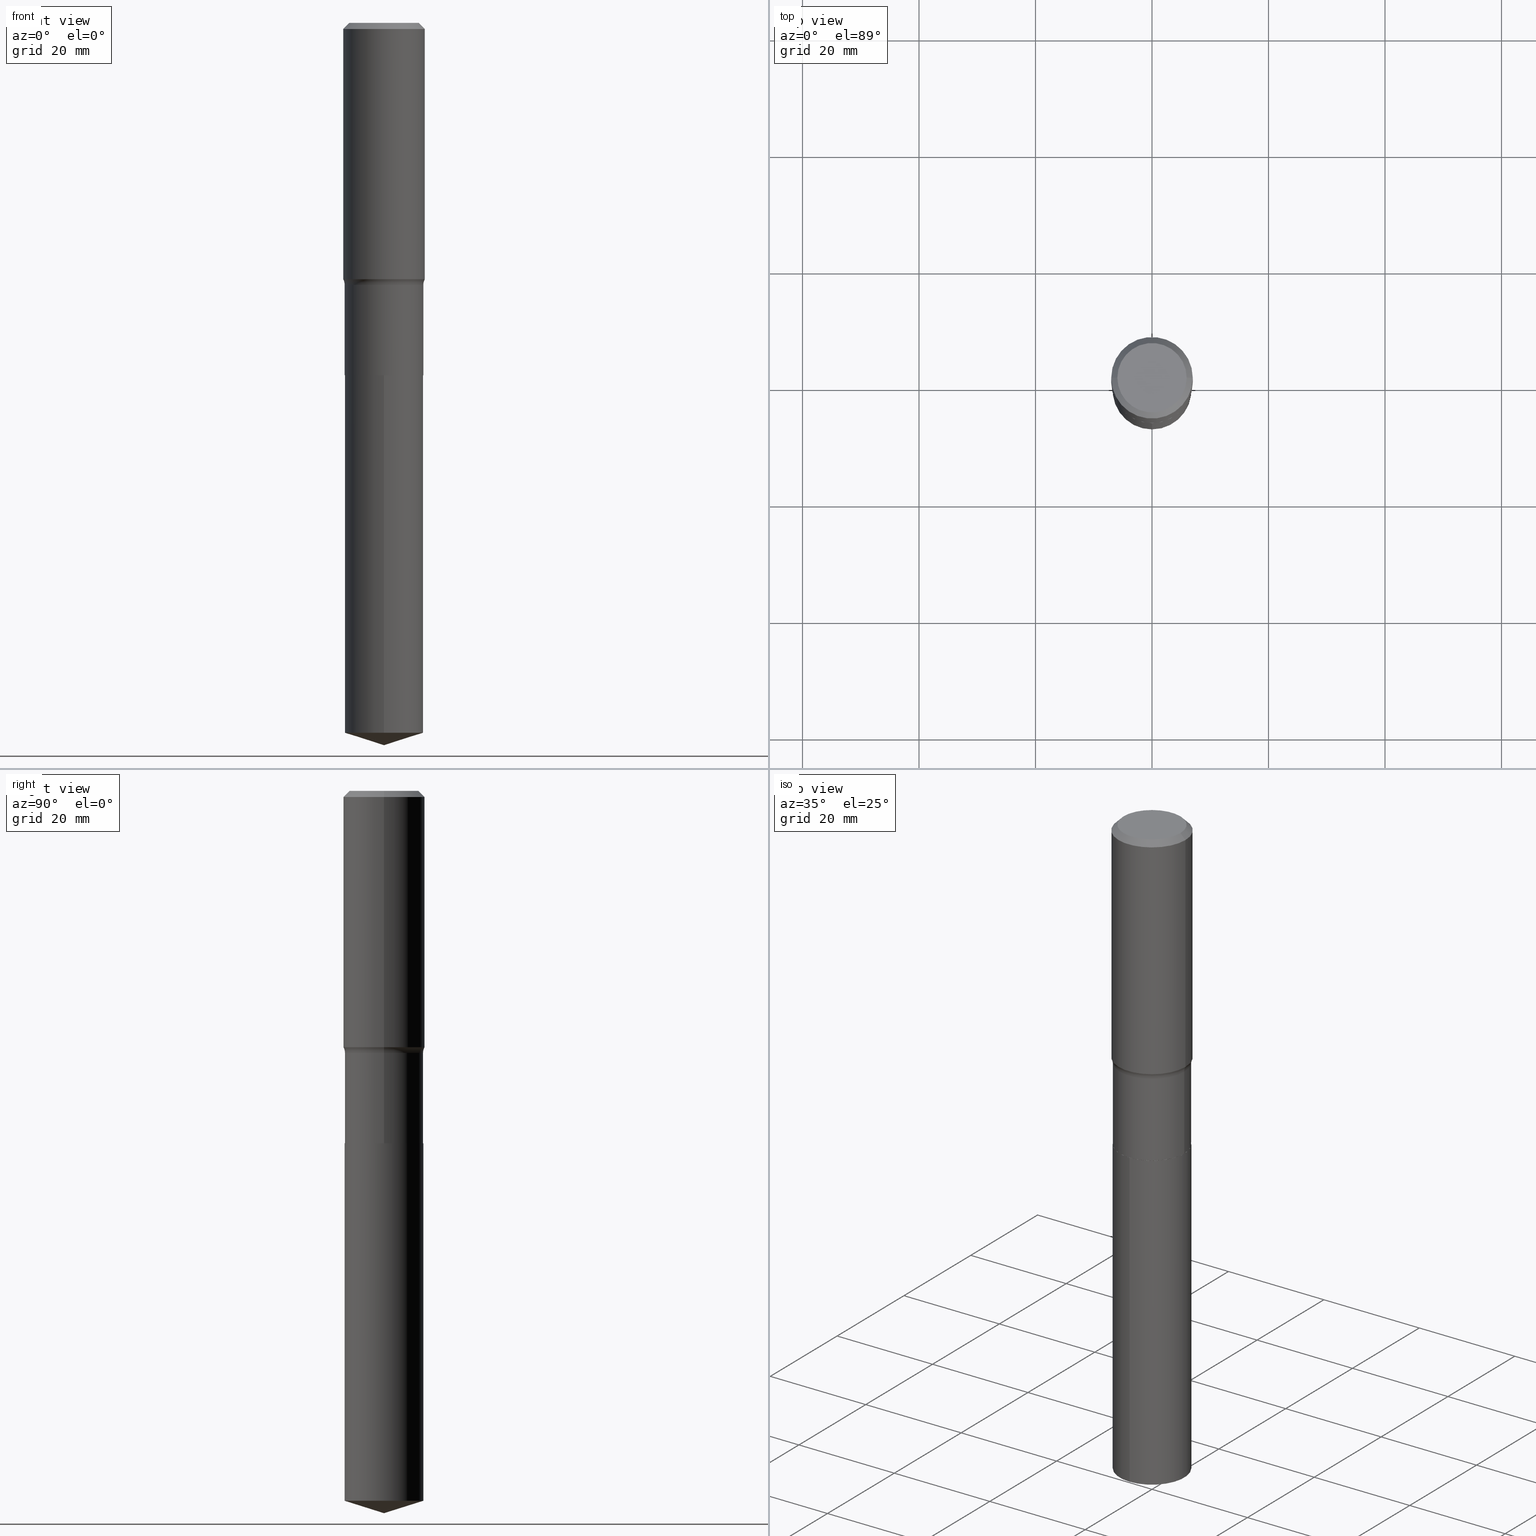
[diagram: canonical four-view strip — front | top / right | iso, engineering-drawing reading convention]
A machine part, canonical four-view strip (front | top / right | iso — engineering-drawing reading convention). The complete STEP part file that produces these views, byte-faithful:
ISO-10303-21;
HEADER;
FILE_DESCRIPTION (( 'STEP AP203' ),
    '1' );
FILE_NAME ('64199.STEP',
    '2024-04-19T15:35:16',
    ( '' ),
    ( '' ),
    'SwSTEP 2.0',
    'SolidWorks 2023',
    '' );
FILE_SCHEMA (( 'CONFIG_CONTROL_DESIGN' ));
ENDSEC;

DATA;
#1 = EDGE_CURVE ( 'NONE', #421, #33, #147, .T. ) ;
#2 = VECTOR ( 'NONE', #347, 39.37007874015748143 ) ;
#3 = CARTESIAN_POINT ( 'NONE',  ( 5.824862149452375369E-29, -8.316359400990487656E-15, -2.381899999999999462 ) ) ;
#4 = AXIS2_PLACEMENT_3D ( 'NONE', #100, #214, #254 ) ;
#5 = CARTESIAN_POINT ( 'NONE',  ( 1.173308198626494863E-28, -1.675328935947353853E-14, -4.798109346855410351 ) ) ;
#6 = ADVANCED_FACE ( 'NONE', ( #120 ), #345, .T. ) ;
#7 = CYLINDRICAL_SURFACE ( 'NONE', #30, 0.2657499999999999862 ) ;
#8 = VERTEX_POINT ( 'NONE', #153 ) ;
#9 = AXIS2_PLACEMENT_3D ( 'NONE', #249, #128, #173 ) ;
#10 = DIRECTION ( 'NONE',  ( -2.445468806185136597E-29, 3.491481338843145583E-15, 1.000000000000000000 ) ) ;
#11 = LINE ( 'NONE', #321, #445 ) ;
#12 = CARTESIAN_POINT ( 'NONE',  ( -1.002970424325033577E-46, 1.431975951230896486E-32, 4.101342130344485961E-18 ) ) ;
#13 = CYLINDRICAL_SURFACE ( 'NONE', #39, 0.2756000000000001227 ) ;
#14 = PERSON_AND_ORGANIZATION ( #466, #439 ) ;
#15 = AXIS2_PLACEMENT_3D ( 'NONE', #176, #10, #438 ) ;
#16 = CARTESIAN_POINT ( 'NONE',  ( 1.010956804476942048E-30, -1.443378385477765563E-16, -0.04134000000000026542 ) ) ;
#17 = APPROVAL ( #136, 'UNSPECIFIED' ) ;
#18 = DIRECTION ( 'NONE',  ( 1.000000000000000000, -6.982962677686265922E-15, 0.000000000000000000 ) ) ;
#19 = CALENDAR_DATE ( 2024, 19, 4 ) ;
#20 = DIRECTION ( 'NONE',  ( -2.445468806185136597E-29, 3.491481338843145583E-15, 1.000000000000000000 ) ) ;
#21 = EDGE_LOOP ( 'NONE', ( #118, #263, #146, #419 ) ) ;
#22 = AXIS2_PLACEMENT_3D ( 'NONE', #453, #156, #427 ) ;
#23 = VECTOR ( 'NONE', #96, 39.37007874015748143 ) ;
#24 = DIRECTION ( 'NONE',  ( 6.982962677686265922E-15, 1.000000000000000000, -3.491804205402707273E-15 ) ) ;
#25 = ORIENTED_EDGE ( 'NONE', *, *, #490, .F. ) ;
#26 = DIRECTION ( 'NONE',  ( -6.982962677686266711E-15, -1.000000000000000000, 3.491481338843145583E-15 ) ) ;
#27 = EDGE_LOOP ( 'NONE', ( #183, #260 ) ) ;
#28 = PLANE ( 'NONE',  #148 ) ;
#29 = ORIENTED_EDGE ( 'NONE', *, *, #58, .F. ) ;
#30 = AXIS2_PLACEMENT_3D ( 'NONE', #3, #303, #158 ) ;
#31 = FACE_OUTER_BOUND ( 'NONE', #218, .T. ) ;
#32 = CIRCLE ( 'NONE', #194, 0.2657499999999999862 ) ;
#33 = VERTEX_POINT ( 'NONE', #41 ) ;
#34 =( GEOMETRIC_REPRESENTATION_CONTEXT ( 3 ) GLOBAL_UNCERTAINTY_ASSIGNED_CONTEXT ( ( #172 ) ) GLOBAL_UNIT_ASSIGNED_CONTEXT ( ( #244, #134, #129 ) ) REPRESENTATION_CONTEXT ( 'NONE', 'WORKASPACE' ) );
#35 = DIRECTION ( 'NONE',  ( -2.445243349671607734E-29, 3.491804205402706878E-15, 1.000000000000000000 ) ) ;
#36 = EDGE_LOOP ( 'NONE', ( #455, #177, #144, #456 ) ) ;
#37 = DIRECTION ( 'NONE',  ( -6.982962677686266711E-15, -1.000000000000000000, 3.083930002255048040E-15 ) ) ;
#38 = ORIENTED_EDGE ( 'NONE', *, *, #135, .F. ) ;
#39 = AXIS2_PLACEMENT_3D ( 'NONE', #282, #200, #433 ) ;
#40 = EDGE_CURVE ( 'NONE', #299, #363, #304, .T. ) ;
#41 = CARTESIAN_POINT ( 'NONE',  ( -1.855722331595008201E-15, -0.2657500000000168061, -4.798109346855409463 ) ) ;
#42 = DATE_AND_TIME ( #278, #88 ) ;
#43 = EDGE_LOOP ( 'NONE', ( #442, #373 ) ) ;
#44 = ADVANCED_FACE ( 'NONE', ( #84 ), #7, .T. ) ;
#45 = APPROVAL_ROLE ( '' ) ;
#46 = CC_DESIGN_PERSON_AND_ORGANIZATION_ASSIGNMENT ( #55, #206, ( #317 ) ) ;
#47 = DIRECTION ( 'NONE',  ( -2.445243349671607734E-29, 3.491804205402707273E-15, 1.000000000000000000 ) ) ;
#48 = CARTESIAN_POINT ( 'NONE',  ( 1.193743350876182104E-28, -1.704663895035547476E-14, -4.881899999999999906 ) ) ;
#49 = VECTOR ( 'NONE', #236, 39.37007874015748143 ) ;
#50 = AXIS2_PLACEMENT_3D ( 'NONE', #386, #325, #247 ) ;
#51 = DIRECTION ( 'NONE',  ( -2.445468806185136597E-29, 3.491481338843145583E-15, 1.000000000000000000 ) ) ;
#52 =( LENGTH_UNIT ( ) NAMED_UNIT ( * ) SI_UNIT ( $, .METRE. ) );
#53 = APPROVAL_DATE_TIME ( #431, #17 ) ;
#54 = CARTESIAN_POINT ( 'NONE',  ( 5.823639415049283689E-29, -8.314613660321065363E-15, -2.381399999999999739 ) ) ;
#55 = PERSON_AND_ORGANIZATION ( #466, #439 ) ;
#56 = DIRECTION ( 'NONE',  ( -2.445468806185136597E-29, 3.491481338843145583E-15, 1.000000000000000000 ) ) ;
#57 = AXIS2_PLACEMENT_3D ( 'NONE', #392, #463, #389 ) ;
#58 = EDGE_CURVE ( 'NONE', #180, #459, #484, .T. ) ;
#59 = AXIS2_PLACEMENT_3D ( 'NONE', #16, #205, #122 ) ;
#60 = LINE ( 'NONE', #318, #193 ) ;
#61 = DIRECTION ( 'NONE',  ( 1.000000000000000000, -6.982962677686267499E-15, 4.876157962347795834E-29 ) ) ;
#62 = CARTESIAN_POINT ( 'NONE',  ( 0.2657499999999999862, -1.855722331595125347E-15, 1.295843978167769732E-29 ) ) ;
#63 = LOCAL_TIME ( 11, 35, 16.00000000000000000, #357 ) ;
#64 = ORIENTED_EDGE ( 'NONE', *, *, #91, .T. ) ;
#65 = ADVANCED_FACE ( 'NONE', ( #382 ), #454, .T. ) ;
#66 = DIRECTION ( 'NONE',  ( 1.000000000000000000, -6.982962677686266711E-15, 4.876176775795935232E-29 ) ) ;
#67 = ORIENTED_EDGE ( 'NONE', *, *, #1, .F. ) ;
#68 = CIRCLE ( 'NONE', #405, 0.2657500000000000417 ) ;
#69 = CIRCLE ( 'NONE', #83, 0.07800000000000002764 ) ;
#70 = EDGE_LOOP ( 'NONE', ( #301, #196, #230, #229 ) ) ;
#71 = CARTESIAN_POINT ( 'NONE',  ( -8.433145269178622269E-28, 1.204267365974203475E-13, 34.48817874015747975 ) ) ;
#72 = EDGE_LOOP ( 'NONE', ( #370, #110, #413, #112 ) ) ;
#73 = CARTESIAN_POINT ( 'NONE',  ( 0.2657500000000000417, -1.017033599191619229E-14, -2.381399999999999739 ) ) ;
#74 = VERTEX_POINT ( 'NONE', #163 ) ;
#75 = CARTESIAN_POINT ( 'NONE',  ( 5.824862149452375369E-29, -8.316359400990487656E-15, -2.381899999999999462 ) ) ;
#76 = EDGE_LOOP ( 'NONE', ( #161, #64, #375, #38 ) ) ;
#77 = ORIENTED_EDGE ( 'NONE', *, *, #124, .F. ) ;
#78 = ADVANCED_FACE ( 'NONE', ( #208 ), #315, .T. ) ;
#79 = VERTEX_POINT ( 'NONE', #430 ) ;
#80 = APPROVAL_DATE_TIME ( #42, #359 ) ;
#81 = LOCAL_TIME ( 11, 35, 16.00000000000000000, #166 ) ;
#82 = ORIENTED_EDGE ( 'NONE', *, *, #226, .T. ) ;
#83 = AXIS2_PLACEMENT_3D ( 'NONE', #329, #26, #295 ) ;
#84 = FACE_OUTER_BOUND ( 'NONE', #407, .T. ) ;
#85 = EDGE_CURVE ( 'NONE', #115, #299, #11, .T. ) ;
#86 = DIRECTION ( 'NONE',  ( 0.7071067811865452413, -7.319954787623248157E-15, -0.7071067811865497932 ) ) ;
#87 = LINE ( 'NONE', #428, #364 ) ;
#88 = LOCAL_TIME ( 11, 35, 16.00000000000000000, #127 ) ;
#89 = CARTESIAN_POINT ( 'NONE',  ( 0.2652499999999999858, -1.016859025124677000E-14, -2.381899999999999462 ) ) ;
#90 = CARTESIAN_POINT ( 'NONE',  ( -0.2657499999999999862, 1.888267320282466146E-15, -1.307207000235241229E-29 ) ) ;
#91 = EDGE_CURVE ( 'NONE', #189, #192, #327, .T. ) ;
#92 = CARTESIAN_POINT ( 'NONE',  ( -5.014852121625167883E-47, 7.159879756154482429E-33, 2.050671065172242981E-18 ) ) ;
#93 = LINE ( 'NONE', #90, #23 ) ;
#94 = CYLINDRICAL_SURFACE ( 'NONE', #57, 0.2756000000000001227 ) ;
#95 = APPROVAL ( #284, 'UNSPECIFIED' ) ;
#96 = DIRECTION ( 'NONE',  ( -2.445468806185136877E-29, 3.491481338843145188E-15, 1.000000000000000000 ) ) ;
#97 = CARTESIAN_POINT ( 'NONE',  ( 5.824862149452375369E-29, -8.316359400990487656E-15, -2.381899999999999462 ) ) ;
#98 = CIRCLE ( 'NONE', #250, 0.2657499999999999862 ) ;
#99 = CIRCLE ( 'NONE', #114, 0.2342600000000000238 ) ;
#100 = CARTESIAN_POINT ( 'NONE',  ( 5.824862149452375369E-29, -8.316359400990487656E-15, -2.381899999999999462 ) ) ;
#101 = ADVANCED_FACE ( 'NONE', ( #285 ), #94, .T. ) ;
#102 = MANIFOLD_SOLID_BREP ( 'Body-Move/Copy2[1]', #351 ) ;
#103 = CARTESIAN_POINT ( 'NONE',  ( 5.824862149452375369E-29, -8.316359400990487656E-15, -2.381899999999999462 ) ) ;
#104 = EDGE_LOOP ( 'NONE', ( #232, #258, #307, #343 ) ) ;
#105 = DIRECTION ( 'NONE',  ( 7.105427357601001859E-15, 1.000000000000000000, -3.491481338843145583E-15 ) ) ;
#106 = ORIENTED_EDGE ( 'NONE', *, *, #160, .F. ) ;
#107 = AXIS2_PLACEMENT_3D ( 'NONE', #5, #340, #492 ) ;
#108 = CONICAL_SURFACE ( 'NONE', #371, 124.8659371009150760, 1.265363707695891682 ) ;
#109 = CYLINDRICAL_SURFACE ( 'NONE', #460, 0.2657499999999999862 ) ;
#110 = ORIENTED_EDGE ( 'NONE', *, *, #379, .T. ) ;
#111 = FACE_OUTER_BOUND ( 'NONE', #21, .T. ) ;
#112 = ORIENTED_EDGE ( 'NONE', *, *, #302, .F. ) ;
#113 = DIRECTION ( 'NONE',  ( -2.445468806185136597E-29, 3.491481338843145583E-15, 1.000000000000000000 ) ) ;
#114 = AXIS2_PLACEMENT_3D ( 'NONE', #12, #434, #61 ) ;
#115 = VERTEX_POINT ( 'NONE', #203 ) ;
#116 = MANIFOLD_SOLID_BREP ( 'Body-Move/Copy2[2]', #319 ) ;
#117 = PRODUCT_DEFINITION ( 'UNKNOWN', '', #235, #472 ) ;
#118 = ORIENTED_EDGE ( 'NONE', *, *, #91, .F. ) ;
#119 = ORIENTED_EDGE ( 'NONE', *, *, #395, .T. ) ;
#120 = FACE_OUTER_BOUND ( 'NONE', #228, .T. ) ;
#121 = AXIS2_PLACEMENT_3D ( 'NONE', #188, #406, #401 ) ;
#122 = DIRECTION ( 'NONE',  ( 1.000000000000000000, -6.982962677686267499E-15, 0.000000000000000000 ) ) ;
#123 = DIRECTION ( 'NONE',  ( 1.000000000000000000, -6.982962677686265922E-15, 4.876176775795935793E-29 ) ) ;
#124 = EDGE_CURVE ( 'NONE', #33, #421, #98, .T. ) ;
#125 = EDGE_CURVE ( 'NONE', #420, #421, #164, .T. ) ;
#126 = CARTESIAN_POINT ( 'NONE',  ( 1.173308198626494863E-28, -1.675328935947353853E-14, -4.798109346855410351 ) ) ;
#127 = COORDINATED_UNIVERSAL_TIME_OFFSET ( 5, 0, .BEHIND. ) ;
#128 = DIRECTION ( 'NONE',  ( -2.445468806185136597E-29, 3.491481338843145583E-15, 1.000000000000000000 ) ) ;
#129 =( NAMED_UNIT ( * ) SI_UNIT ( $, .STERADIAN. ) SOLID_ANGLE_UNIT ( ) );
#130 = PLANE ( 'NONE',  #279 ) ;
#131 = DATE_AND_TIME ( #470, #432 ) ;
#132 = PERSON_AND_ORGANIZATION_ROLE ( 'classification_officer' ) ;
#133 = CARTESIAN_POINT ( 'NONE',  ( -0.2342600000000000238, 1.707997756148671759E-15, 4.101342130332794026E-18 ) ) ;
#134 =( NAMED_UNIT ( * ) PLANE_ANGLE_UNIT ( ) SI_UNIT ( $, .RADIAN. ) );
#135 = EDGE_CURVE ( 'NONE', #8, #291, #272, .T. ) ;
#136 = APPROVAL_STATUS ( 'not_yet_approved' ) ;
#137 = LOCAL_TIME ( 11, 35, 16.00000000000000000, #480 ) ;
#138 = LINE ( 'NONE', #287, #280 ) ;
#139 = ADVANCED_FACE ( 'NONE', ( #384 ), #130, .F. ) ;
#140 = CONICAL_SURFACE ( 'NONE', #4, 0.2652499999999999858, 0.7853981633975849475 ) ;
#141 = DIRECTION ( 'NONE',  ( 1.000000000000000000, -6.982962677686264344E-15, 0.000000000000000000 ) ) ;
#142 = ORIENTED_EDGE ( 'NONE', *, *, #476, .F. ) ;
#143 = DIRECTION ( 'NONE',  ( -2.445468806185136597E-29, 3.491481338843145583E-15, 1.000000000000000000 ) ) ;
#144 = ORIENTED_EDGE ( 'NONE', *, *, #332, .F. ) ;
#145 = DIRECTION ( 'NONE',  ( -2.445468806185136597E-29, 3.491481338843145583E-15, 1.000000000000000000 ) ) ;
#146 = ORIENTED_EDGE ( 'NONE', *, *, #135, .T. ) ;
#147 = CIRCLE ( 'NONE', #107, 0.2657499999999999862 ) ;
#148 = AXIS2_PLACEMENT_3D ( 'NONE', #103, #362, #24 ) ;
#149 = CC_DESIGN_DATE_AND_TIME_ASSIGNMENT ( #314, #400, ( #117 ) ) ;
#150 = DIRECTION ( 'NONE',  ( -2.445468806185136597E-29, 3.491481338843145583E-15, 1.000000000000000000 ) ) ;
#151 = ORIENTED_EDGE ( 'NONE', *, *, #328, .F. ) ;
#152 = FACE_OUTER_BOUND ( 'NONE', #76, .T. ) ;
#153 = CARTESIAN_POINT ( 'NONE',  ( 0.2652499999999999858, -1.016859025124677000E-14, -2.381899999999999462 ) ) ;
#154 = EDGE_CURVE ( 'NONE', #291, #192, #68, .T. ) ;
#155 = AXIS2_PLACEMENT_3D ( 'NONE', #97, #396, #18 ) ;
#156 = DIRECTION ( 'NONE',  ( 2.445468806185136597E-29, -3.491481338843145583E-15, -1.000000000000000000 ) ) ;
#157 = DIRECTION ( 'NONE',  ( -2.445243349671607734E-29, 3.491804205402706878E-15, 1.000000000000000000 ) ) ;
#158 = DIRECTION ( 'NONE',  ( -6.982962677686266711E-15, -1.000000000000000000, 3.083930002255048040E-15 ) ) ;
#159 = CC_DESIGN_APPROVAL ( #359, ( #235 ) ) ;
#160 = EDGE_CURVE ( 'NONE', #33, #79, #60, .T. ) ;
#161 = ORIENTED_EDGE ( 'NONE', *, *, #216, .T. ) ;
#162 = CONICAL_SURFACE ( 'NONE', #50, 0.2756000000000000116, 0.7853981633974450594 ) ;
#163 = CARTESIAN_POINT ( 'NONE',  ( 1.888267320282583686E-15, 0.2657499999999916596, -2.381900000000000350 ) ) ;
#164 = LINE ( 'NONE', #239, #429 ) ;
#165 = SECURITY_CLASSIFICATION ( '', '', #326 ) ;
#166 = COORDINATED_UNIVERSAL_TIME_OFFSET ( 5, 0, .BEHIND. ) ;
#167 = DIRECTION ( 'NONE',  ( -2.445468806185136597E-29, 3.491481338843145583E-15, 1.000000000000000000 ) ) ;
#168 = APPROVAL_ROLE ( '' ) ;
#169 = CIRCLE ( 'NONE', #468, 0.2657499999999999862 ) ;
#170 = PRODUCT_DEFINITION_SHAPE ( 'NONE', 'NONE',  #117 ) ;
#171 = CALENDAR_DATE ( 2024, 19, 4 ) ;
#172 = UNCERTAINTY_MEASURE_WITH_UNIT (LENGTH_MEASURE( 1.000000000000000082E-05 ), #244, 'distance_accuracy_value', 'NONE');
#173 = DIRECTION ( 'NONE',  ( 1.000000000000000000, -6.982962677686265922E-15, 0.000000000000000000 ) ) ;
#174 = MECHANICAL_CONTEXT ( 'NONE', #457, 'mechanical' ) ;
#175 = CC_DESIGN_PERSON_AND_ORGANIZATION_ASSIGNMENT ( #403, #289, ( #235 ) ) ;
#176 = CARTESIAN_POINT ( 'NONE',  ( 5.823639415049283689E-29, -8.314613660321065363E-15, -2.381399999999999739 ) ) ;
#177 = ORIENTED_EDGE ( 'NONE', *, *, #488, .T. ) ;
#178 = AXIS2_PLACEMENT_3D ( 'NONE', #474, #241, #123 ) ;
#179 = DIRECTION ( 'NONE',  ( -2.445468806185136877E-29, 3.491481338843145188E-15, 1.000000000000000000 ) ) ;
#180 = VERTEX_POINT ( 'NONE', #211 ) ;
#181 = DIMENSIONAL_EXPONENTS ( 1.000000000000000000, 0.000000000000000000, 0.000000000000000000, 0.000000000000000000, 0.000000000000000000, 0.000000000000000000, 0.000000000000000000 ) ;
#182 = FACE_OUTER_BOUND ( 'NONE', #36, .T. ) ;
#183 = ORIENTED_EDGE ( 'NONE', *, *, #452, .T. ) ;
#184 = DIRECTION ( 'NONE',  ( -1.000000000000000000, 7.105427357601001859E-15, 0.000000000000000000 ) ) ;
#185 = EDGE_LOOP ( 'NONE', ( #402, #294, #265, #195 ) ) ;
#186 = AXIS2_PLACEMENT_3D ( 'NONE', #312, #157, #37 ) ;
#187 = AXIS2_PLACEMENT_3D ( 'NONE', #217, #20, #367 ) ;
#188 = CARTESIAN_POINT ( 'NONE',  ( 4.330191615112019703E-29, -6.182366006689555708E-15, -1.770699999999999275 ) ) ;
#189 = VERTEX_POINT ( 'NONE', #467 ) ;
#190 = EDGE_CURVE ( 'NONE', #363, #299, #477, .T. ) ;
#191 = ORIENTED_EDGE ( 'NONE', *, *, #395, .F. ) ;
#192 = VERTEX_POINT ( 'NONE', #436 ) ;
#193 = VECTOR ( 'NONE', #47, 39.37007874015748143 ) ;
#194 = AXIS2_PLACEMENT_3D ( 'NONE', #449, #113, #414 ) ;
#195 = ORIENTED_EDGE ( 'NONE', *, *, #313, .F. ) ;
#196 = ORIENTED_EDGE ( 'NONE', *, *, #452, .F. ) ;
#197 = EDGE_CURVE ( 'NONE', #459, #180, #422, .T. ) ;
#198 = VERTEX_POINT ( 'NONE', #388 ) ;
#199 = AXIS2_PLACEMENT_3D ( 'NONE', #309, #234, #415 ) ;
#200 = DIRECTION ( 'NONE',  ( -2.445468806185136597E-29, 3.491481338843145583E-15, 1.000000000000000000 ) ) ;
#201 = AXIS2_PLACEMENT_3D ( 'NONE', #75, #35, #451 ) ;
#202 = LENGTH_MEASURE_WITH_UNIT ( LENGTH_MEASURE( 0.02539999999999999897 ), #52 );
#203 = CARTESIAN_POINT ( 'NONE',  ( 0.2342600000000000238, -1.821115673845785155E-15, 4.101342130356573868E-18 ) ) ;
#204 = EDGE_CURVE ( 'NONE', #189, #8, #256, .T. ) ;
#205 = DIRECTION ( 'NONE',  ( -2.445468806185136597E-29, 3.491481338843145583E-15, 1.000000000000000000 ) ) ;
#206 = PERSON_AND_ORGANIZATION_ROLE ( 'design_owner' ) ;
#207 = CALENDAR_DATE ( 2024, 19, 4 ) ;
#208 = FACE_OUTER_BOUND ( 'NONE', #491, .T. ) ;
#209 = CIRCLE ( 'NONE', #252, 0.2342600000000000238 ) ;
#210 = PERSON_AND_ORGANIZATION ( #466, #439 ) ;
#211 = CARTESIAN_POINT ( 'NONE',  ( 0.2756000000000002337, -7.974397557640464982E-15, -1.732758235412673598 ) ) ;
#212 = PERSON_AND_ORGANIZATION ( #466, #439 ) ;
#213 = ADVANCED_FACE ( 'NONE', ( #425 ), #13, .T. ) ;
#214 = DIRECTION ( 'NONE',  ( -2.445468806185136597E-29, 3.491481338843145583E-15, 1.000000000000000000 ) ) ;
#215 = VERTEX_POINT ( 'NONE', #133 ) ;
#216 = EDGE_CURVE ( 'NONE', #8, #189, #305, .T. ) ;
#217 = CARTESIAN_POINT ( 'NONE',  ( 4.330191615112019703E-29, -6.182366006689555708E-15, -1.770699999999999275 ) ) ;
#218 = EDGE_LOOP ( 'NONE', ( #376, #29, #479, #380 ) ) ;
#219 = CONICAL_SURFACE ( 'NONE', #486, 124.8659371009150760, 1.265363707695891682 ) ;
#220 = DIRECTION ( 'NONE',  ( -2.445243349671607734E-29, 3.491804205402706878E-15, 1.000000000000000000 ) ) ;
#221 = ORIENTED_EDGE ( 'NONE', *, *, #488, .F. ) ;
#222 = CARTESIAN_POINT ( 'NONE',  ( 0.000000000000000000, 0.000000000000000000, 0.000000000000000000 ) ) ;
#223 = ORIENTED_EDGE ( 'NONE', *, *, #124, .T. ) ;
#224 = LINE ( 'NONE', #255, #346 ) ;
#225 = ORIENTED_EDGE ( 'NONE', *, *, #125, .T. ) ;
#226 = EDGE_CURVE ( 'NONE', #192, #291, #320, .T. ) ;
#227 = CARTESIAN_POINT ( 'NONE',  ( 1.193743350876182104E-28, -1.704663895035547476E-14, -4.881899999999999906 ) ) ;
#228 = EDGE_LOOP ( 'NONE', ( #223, #119, #487, #106 ) ) ;
#229 = ORIENTED_EDGE ( 'NONE', *, *, #190, .T. ) ;
#230 = ORIENTED_EDGE ( 'NONE', *, *, #398, .T. ) ;
#231 = CONICAL_SURFACE ( 'NONE', #288, 0.2652499999999999858, 0.7853981633975849475 ) ;
#232 = ORIENTED_EDGE ( 'NONE', *, *, #368, .F. ) ;
#233 = ADVANCED_FACE ( 'NONE', ( #412 ), #108, .T. ) ;
#234 = DIRECTION ( 'NONE',  ( -2.445468806185136597E-29, 3.491481338843145583E-15, 1.000000000000000000 ) ) ;
#235 = PRODUCT_DEFINITION_FORMATION_WITH_SPECIFIED_SOURCE ( 'ANY', '', #317, .NOT_KNOWN. ) ;
#236 = DIRECTION ( 'NONE',  ( -0.7071067811866441621, 7.493145998870704414E-15, 0.7071067811864508723 ) ) ;
#237 = DIRECTION ( 'NONE',  ( -2.445468806185136877E-29, 3.491481338843145188E-15, 1.000000000000000000 ) ) ;
#238 = EDGE_CURVE ( 'NONE', #291, #198, #485, .T. ) ;
#239 = CARTESIAN_POINT ( 'NONE',  ( 1.193851695647399175E-28, -1.704510087863903415E-14, -4.881899999999999906 ) ) ;
#240 = VECTOR ( 'NONE', #316, 39.37007874015748854 ) ;
#241 = DIRECTION ( 'NONE',  ( -2.438088387897960049E-29, 3.491481338843145188E-15, 1.000000000000000000 ) ) ;
#242 = APPROVAL_PERSON_ORGANIZATION ( #14, #95, #168 ) ;
#243 = DIRECTION ( 'NONE',  ( -1.000000000000000000, 6.982962677686265922E-15, -4.876176775795935793E-29 ) ) ;
#244 =( CONVERSION_BASED_UNIT ( 'INCH', #202 ) LENGTH_UNIT ( ) NAMED_UNIT ( #181 ) );
#245 = DATE_AND_TIME ( #171, #137 ) ;
#246 = CARTESIAN_POINT ( 'NONE',  ( -0.2652499999999999858, -6.431644794386821225E-15, -2.381899999999999462 ) ) ;
#247 = DIRECTION ( 'NONE',  ( -1.000000000000000000, 6.982962677686267499E-15, 0.000000000000000000 ) ) ;
#248 = PERSON_AND_ORGANIZATION ( #466, #439 ) ;
#249 = CARTESIAN_POINT ( 'NONE',  ( 5.824862149452375369E-29, -8.316359400990487656E-15, -2.381899999999999462 ) ) ;
#250 = AXIS2_PLACEMENT_3D ( 'NONE', #126, #348, #469 ) ;
#251 = APPROVAL_DATE_TIME ( #131, #95 ) ;
#252 = AXIS2_PLACEMENT_3D ( 'NONE', #475, #143, #369 ) ;
#253 = FACE_OUTER_BOUND ( 'NONE', #72, .T. ) ;
#254 = DIRECTION ( 'NONE',  ( 1.000000000000000000, -6.982962677686265922E-15, 0.000000000000000000 ) ) ;
#255 = CARTESIAN_POINT ( 'NONE',  ( 0.2756000000000001227, -1.924504513970336137E-15, 1.343874319409360548E-29 ) ) ;
#256 = CIRCLE ( 'NONE', #9, 0.2652499999999999858 ) ;
#257 = DIRECTION ( 'NONE',  ( -6.982962677686266711E-15, -1.000000000000000000, 3.083930002255048040E-15 ) ) ;
#258 = ORIENTED_EDGE ( 'NONE', *, *, #85, .T. ) ;
#259 = CARTESIAN_POINT ( 'NONE',  ( -8.433145269178622269E-28, 1.204267365974203475E-13, 34.48817874015747975 ) ) ;
#260 = ORIENTED_EDGE ( 'NONE', *, *, #368, .T. ) ;
#261 = PRODUCT_RELATED_PRODUCT_CATEGORY ( 'detail', '', ( #317 ) ) ;
#262 = CARTESIAN_POINT ( 'NONE',  ( 1.888267320282583686E-15, 0.2657499999999832774, -4.798109346855411239 ) ) ;
#263 = ORIENTED_EDGE ( 'NONE', *, *, #204, .T. ) ;
#264 = CIRCLE ( 'NONE', #270, 0.07800000000000002764 ) ;
#265 = ORIENTED_EDGE ( 'NONE', *, *, #40, .F. ) ;
#266 = APPLICATION_CONTEXT ( 'configuration controlled 3d designs of mechanical parts and assemblies' ) ;
#267 = CC_DESIGN_SECURITY_CLASSIFICATION ( #165, ( #235 ) ) ;
#268 = ORIENTED_EDGE ( 'NONE', *, *, #238, .T. ) ;
#269 = DIRECTION ( 'NONE',  ( -2.445468806185136597E-29, 3.491481338843145583E-15, 1.000000000000000000 ) ) ;
#270 = AXIS2_PLACEMENT_3D ( 'NONE', #443, #105, #184 ) ;
#271 = ORIENTED_EDGE ( 'NONE', *, *, #204, .F. ) ;
#272 = LINE ( 'NONE', #89, #2 ) ;
#273 = CARTESIAN_POINT ( 'NONE',  ( -0.2756000000000002337, -4.091637263915290283E-15, -1.732758235412673598 ) ) ;
#274 = ADVANCED_FACE ( 'NONE', ( #182 ), #109, .T. ) ;
#275 = PERSON_AND_ORGANIZATION ( #466, #439 ) ;
#276 = CARTESIAN_POINT ( 'NONE',  ( 4.237406213362094695E-29, -6.049893043670127661E-15, -1.732758235412673598 ) ) ;
#277 = FACE_OUTER_BOUND ( 'NONE', #330, .T. ) ;
#278 = CALENDAR_DATE ( 2024, 19, 4 ) ;
#279 = AXIS2_PLACEMENT_3D ( 'NONE', #92, #473, #243 ) ;
#280 = VECTOR ( 'NONE', #483, 39.37007874015748143 ) ;
#281 = DIRECTION ( 'NONE',  ( 1.000000000000000000, -6.982962677686266711E-15, 4.876176775795935232E-29 ) ) ;
#282 = CARTESIAN_POINT ( 'NONE',  ( 0.000000000000000000, 0.000000000000000000, 0.000000000000000000 ) ) ;
#283 = CC_DESIGN_APPROVAL ( #17, ( #165 ) ) ;
#284 = APPROVAL_STATUS ( 'not_yet_approved' ) ;
#285 = FACE_OUTER_BOUND ( 'NONE', #185, .T. ) ;
#286 = DIRECTION ( 'NONE',  ( 0.000000000000000000, 0.000000000000000000, 1.000000000000000000 ) ) ;
#287 = CARTESIAN_POINT ( 'NONE',  ( 1.888267320282524127E-15, 0.2657499999999916596, -2.381900000000000350 ) ) ;
#288 = AXIS2_PLACEMENT_3D ( 'NONE', #372, #338, #300 ) ;
#289 = PERSON_AND_ORGANIZATION_ROLE ( 'design_supplier' ) ;
#290 = FACE_OUTER_BOUND ( 'NONE', #43, .T. ) ;
#291 = VERTEX_POINT ( 'NONE', #73 ) ;
#292 = ADVANCED_FACE ( 'NONE', ( #31 ), #394, .F. ) ;
#293 = DIRECTION ( 'NONE',  ( -6.982962677686265922E-15, -1.000000000000000000, 3.500519750498704038E-15 ) ) ;
#294 = ORIENTED_EDGE ( 'NONE', *, *, #490, .T. ) ;
#295 = DIRECTION ( 'NONE',  ( 1.000000000000000000, -6.982962677686255667E-15, 0.000000000000000000 ) ) ;
#296 = EDGE_LOOP ( 'NONE', ( #448, #444, #67 ) ) ;
#297 = VECTOR ( 'NONE', #179, 39.37007874015748143 ) ;
#298 = CARTESIAN_POINT ( 'NONE',  ( -0.2756000000000000116, 1.780166675422558965E-15, -0.04134000000000026542 ) ) ;
#299 = VERTEX_POINT ( 'NONE', #478 ) ;
#300 = DIRECTION ( 'NONE',  ( 1.000000000000000000, -6.982962677686265922E-15, 0.000000000000000000 ) ) ;
#301 = ORIENTED_EDGE ( 'NONE', *, *, #85, .F. ) ;
#302 = EDGE_CURVE ( 'NONE', #180, #198, #69, .T. ) ;
#303 = DIRECTION ( 'NONE',  ( -2.445243349671607734E-29, 3.491804205402706878E-15, 1.000000000000000000 ) ) ;
#304 = CIRCLE ( 'NONE', #416, 0.2756000000000000116 ) ;
#305 = CIRCLE ( 'NONE', #155, 0.2652499999999999858 ) ;
#306 = CARTESIAN_POINT ( 'NONE',  ( 1.010956804476942048E-30, -1.443378385477765563E-16, -0.04134000000000026542 ) ) ;
#307 = ORIENTED_EDGE ( 'NONE', *, *, #40, .T. ) ;
#308 = APPROVAL_PERSON_ORGANIZATION ( #411, #359, #45 ) ;
#309 = CARTESIAN_POINT ( 'NONE',  ( 4.237406213362094695E-29, -6.049893043670127661E-15, -1.732758235412673598 ) ) ;
#310 = ADVANCED_FACE ( 'NONE', ( #111 ), #140, .T. ) ;
#311 = AXIS2_PLACEMENT_3D ( 'NONE', #276, #167, #349 ) ;
#312 = CARTESIAN_POINT ( 'NONE',  ( 5.824862149452375369E-29, -8.316359400990487656E-15, -2.381899999999999462 ) ) ;
#313 = EDGE_CURVE ( 'NONE', #180, #299, #224, .T. ) ;
#314 = DATE_AND_TIME ( #19, #63 ) ;
#315 = CYLINDRICAL_SURFACE ( 'NONE', #377, 0.2657499999999999862 ) ;
#316 = DIRECTION ( 'NONE',  ( -6.659769872151631300E-15, -0.9537169507482265995, 0.3007057995042737852 ) ) ;
#317 = PRODUCT ( '64199', '64199', '', ( #174 ) ) ;
#318 = CARTESIAN_POINT ( 'NONE',  ( -1.855722331595066971E-15, -0.2657500000000083129, -2.381899999999998574 ) ) ;
#319 = CLOSED_SHELL ( 'NONE', ( #435, #441, #101, #323, #274, #78, #292, #213, #65, #139, #465, #310 ) ) ;
#320 = CIRCLE ( 'NONE', #15, 0.2657500000000000417 ) ;
#321 = CARTESIAN_POINT ( 'NONE',  ( 0.2756000000000000116, -2.035091086733610886E-15, -0.04134000000000026542 ) ) ;
#322 = CARTESIAN_POINT ( 'NONE',  ( 0.000000000000000000, 0.000000000000000000, 0.000000000000000000 ) ) ;
#323 = ADVANCED_FACE ( 'NONE', ( #253 ), #378, .F. ) ;
#324 = DIRECTION ( 'NONE',  ( 6.776566513254256560E-15, 0.9537169507482287090, 0.3007057995042671794 ) ) ;
#325 = DIRECTION ( 'NONE',  ( 2.445468806185136597E-29, -3.491481338843145583E-15, -1.000000000000000000 ) ) ;
#326 = SECURITY_CLASSIFICATION_LEVEL ( 'unclassified' ) ;
#327 = LINE ( 'NONE', #246, #49 ) ;
#328 = EDGE_CURVE ( 'NONE', #74, #79, #169, .T. ) ;
#329 = CARTESIAN_POINT ( 'NONE',  ( 0.3437500000000000000, -8.582759427144209889E-15, -1.770699999999999275 ) ) ;
#330 = EDGE_LOOP ( 'NONE', ( #461, #271 ) ) ;
#331 = CIRCLE ( 'NONE', #447, 0.2657499999999999862 ) ;
#332 = EDGE_CURVE ( 'NONE', #198, #482, #331, .T. ) ;
#333 = SHAPE_DEFINITION_REPRESENTATION ( #170, #355 ) ;
#334 = CARTESIAN_POINT ( 'NONE',  ( -0.2756000000000000116, -1.138859661354115236E-15, -0.04134000000000026542 ) ) ;
#335 = ORIENTED_EDGE ( 'NONE', *, *, #1, .T. ) ;
#336 = DIRECTION ( 'NONE',  ( -2.445468806185136877E-29, 3.491481338843145188E-15, 1.000000000000000000 ) ) ;
#337 = DIRECTION ( 'NONE',  ( -0.7071067811865452413, 2.468850131082233000E-15, -0.7071067811865497932 ) ) ;
#338 = DIRECTION ( 'NONE',  ( -2.445468806185136597E-29, 3.491481338843145583E-15, 1.000000000000000000 ) ) ;
#339 = ORIENTED_EDGE ( 'NONE', *, *, #410, .F. ) ;
#340 = DIRECTION ( 'NONE',  ( -2.445243349671607734E-29, 3.491804205402706878E-15, 1.000000000000000000 ) ) ;
#341 = DIRECTION ( 'NONE',  ( 1.000000000000000000, -6.982962677686267499E-15, 0.000000000000000000 ) ) ;
#342 = ORIENTED_EDGE ( 'NONE', *, *, #160, .T. ) ;
#343 = ORIENTED_EDGE ( 'NONE', *, *, #398, .F. ) ;
#344 = ADVANCED_FACE ( 'NONE', ( #290 ), #28, .F. ) ;
#345 = CYLINDRICAL_SURFACE ( 'NONE', #186, 0.2657499999999999862 ) ;
#346 = VECTOR ( 'NONE', #336, 39.37007874015748143 ) ;
#347 = DIRECTION ( 'NONE',  ( 0.7071067811866441621, -2.468850131083269169E-15, 0.7071067811864508723 ) ) ;
#348 = DIRECTION ( 'NONE',  ( -2.445243349671607734E-29, 3.491804205402706878E-15, 1.000000000000000000 ) ) ;
#349 = DIRECTION ( 'NONE',  ( 1.000000000000000000, -6.982962677686267499E-15, 0.000000000000000000 ) ) ;
#350 = LINE ( 'NONE', #48, #240 ) ;
#351 = CLOSED_SHELL ( 'NONE', ( #6, #233, #374, #44, #344 ) ) ;
#352 = DIRECTION ( 'NONE',  ( 1.000000000000000000, -6.982962677686266711E-15, 0.000000000000000000 ) ) ;
#353 = DIRECTION ( 'NONE',  ( 1.000000000000000000, 0.000000000000000000, 0.000000000000000000 ) ) ;
#354 = APPROVAL_ROLE ( '' ) ;
#355 = ADVANCED_BREP_SHAPE_REPRESENTATION ( '64199', ( #102, #116, #399 ), #34 ) ;
#356 = CARTESIAN_POINT ( 'NONE',  ( 0.000000000000000000, 0.000000000000000000, 0.000000000000000000 ) ) ;
#357 = COORDINATED_UNIVERSAL_TIME_OFFSET ( 5, 0, .BEHIND. ) ;
#358 = CC_DESIGN_APPROVAL ( #95, ( #117 ) ) ;
#359 = APPROVAL ( #381, 'UNSPECIFIED' ) ;
#360 = CARTESIAN_POINT ( 'NONE',  ( 5.824862149452375369E-29, -8.316359400990487656E-15, -2.381899999999999462 ) ) ;
#361 = ORIENTED_EDGE ( 'NONE', *, *, #313, .T. ) ;
#362 = DIRECTION ( 'NONE',  ( 2.445243349671607173E-29, -3.491804205402707273E-15, -1.000000000000000000 ) ) ;
#363 = VERTEX_POINT ( 'NONE', #334 ) ;
#364 = VECTOR ( 'NONE', #237, 39.37007874015748143 ) ;
#365 = DIRECTION ( 'NONE',  ( -2.445243349671607734E-29, 3.491804205402706878E-15, 1.000000000000000000 ) ) ;
#366 = EDGE_LOOP ( 'NONE', ( #25, #409, #361, #450 ) ) ;
#367 = DIRECTION ( 'NONE',  ( 1.000000000000000000, -6.982962677686269077E-15, 4.883557194083114022E-29 ) ) ;
#368 = EDGE_CURVE ( 'NONE', #115, #215, #209, .T. ) ;
#369 = DIRECTION ( 'NONE',  ( 1.000000000000000000, -6.982962677686267499E-15, 4.876157962347795834E-29 ) ) ;
#370 = ORIENTED_EDGE ( 'NONE', *, *, #197, .F. ) ;
#371 = AXIS2_PLACEMENT_3D ( 'NONE', #71, #440, #404 ) ;
#372 = CARTESIAN_POINT ( 'NONE',  ( 5.824862149452375369E-29, -8.316359400990487656E-15, -2.381899999999999462 ) ) ;
#373 = ORIENTED_EDGE ( 'NONE', *, *, #328, .T. ) ;
#374 = ADVANCED_FACE ( 'NONE', ( #481 ), #219, .T. ) ;
#375 = ORIENTED_EDGE ( 'NONE', *, *, #154, .F. ) ;
#376 = ORIENTED_EDGE ( 'NONE', *, *, #379, .F. ) ;
#377 = AXIS2_PLACEMENT_3D ( 'NONE', #356, #51, #281 ) ;
#378 = TOROIDAL_SURFACE ( 'NONE', #121, 0.3437500000000000000, 0.07800000000000002764 ) ;
#379 = EDGE_CURVE ( 'NONE', #459, #482, #264, .T. ) ;
#380 = ORIENTED_EDGE ( 'NONE', *, *, #332, .T. ) ;
#381 = APPROVAL_STATUS ( 'not_yet_approved' ) ;
#382 = FACE_OUTER_BOUND ( 'NONE', #70, .T. ) ;
#383 = CC_DESIGN_DATE_AND_TIME_ASSIGNMENT ( #245, #391, ( #165 ) ) ;
#384 = FACE_OUTER_BOUND ( 'NONE', #27, .T. ) ;
#385 = APPROVAL_PERSON_ORGANIZATION ( #210, #17, #354 ) ;
#386 = CARTESIAN_POINT ( 'NONE',  ( 1.010956804476942048E-30, -1.443378385477765563E-16, -0.04134000000000026542 ) ) ;
#387 = VECTOR ( 'NONE', #337, 39.37007874015748143 ) ;
#388 = CARTESIAN_POINT ( 'NONE',  ( 0.2657499999999999862, -8.038088338284680266E-15, -1.770699999999999275 ) ) ;
#389 = DIRECTION ( 'NONE',  ( 1.000000000000000000, -6.982962677686267499E-15, 4.876176775795935793E-29 ) ) ;
#390 = CC_DESIGN_PERSON_AND_ORGANIZATION_ASSIGNMENT ( #275, #471, ( #235 ) ) ;
#391 = DATE_TIME_ROLE ( 'classification_date' ) ;
#392 = CARTESIAN_POINT ( 'NONE',  ( 0.000000000000000000, 0.000000000000000000, 0.000000000000000000 ) ) ;
#393 = PLANE ( 'NONE',  #178 ) ;
#394 = TOROIDAL_SURFACE ( 'NONE', #187, 0.3437500000000000000, 0.07800000000000002764 ) ;
#395 = EDGE_CURVE ( 'NONE', #421, #74, #138, .T. ) ;
#396 = DIRECTION ( 'NONE',  ( -2.445468806185136597E-29, 3.491481338843145583E-15, 1.000000000000000000 ) ) ;
#397 = APPLICATION_PROTOCOL_DEFINITION ( 'international standard', 'config_control_design', 1994, #266 ) ;
#398 = EDGE_CURVE ( 'NONE', #215, #363, #408, .T. ) ;
#399 = AXIS2_PLACEMENT_3D ( 'NONE', #322, #286, #353 ) ;
#400 = DATE_TIME_ROLE ( 'creation_date' ) ;
#401 = DIRECTION ( 'NONE',  ( 1.000000000000000000, -6.982962677686269077E-15, 4.883557194083114022E-29 ) ) ;
#402 = ORIENTED_EDGE ( 'NONE', *, *, #58, .T. ) ;
#403 = PERSON_AND_ORGANIZATION ( #466, #439 ) ;
#404 = DIRECTION ( 'NONE',  ( -6.982962677686265922E-15, -1.000000000000000000, 3.500519750498704038E-15 ) ) ;
#405 = AXIS2_PLACEMENT_3D ( 'NONE', #54, #56, #352 ) ;
#406 = DIRECTION ( 'NONE',  ( -2.445468806185136597E-29, 3.491481338843145583E-15, 1.000000000000000000 ) ) ;
#407 = EDGE_LOOP ( 'NONE', ( #191, #335, #342, #151 ) ) ;
#408 = LINE ( 'NONE', #298, #387 ) ;
#409 = ORIENTED_EDGE ( 'NONE', *, *, #197, .T. ) ;
#410 = EDGE_CURVE ( 'NONE', #482, #198, #32, .T. ) ;
#411 = PERSON_AND_ORGANIZATION ( #466, #439 ) ;
#412 = FACE_OUTER_BOUND ( 'NONE', #423, .T. ) ;
#413 = ORIENTED_EDGE ( 'NONE', *, *, #410, .T. ) ;
#414 = DIRECTION ( 'NONE',  ( 1.000000000000000000, -6.982962677686264344E-15, 0.000000000000000000 ) ) ;
#415 = DIRECTION ( 'NONE',  ( 1.000000000000000000, -6.982962677686267499E-15, 0.000000000000000000 ) ) ;
#416 = AXIS2_PLACEMENT_3D ( 'NONE', #306, #269, #341 ) ;
#417 = CIRCLE ( 'NONE', #201, 0.2657499999999999862 ) ;
#418 = CC_DESIGN_PERSON_AND_ORGANIZATION_ASSIGNMENT ( #212, #462, ( #117 ) ) ;
#419 = ORIENTED_EDGE ( 'NONE', *, *, #226, .F. ) ;
#420 = VERTEX_POINT ( 'NONE', #227 ) ;
#421 = VERTEX_POINT ( 'NONE', #262 ) ;
#422 = CIRCLE ( 'NONE', #311, 0.2756000000000002337 ) ;
#423 = EDGE_LOOP ( 'NONE', ( #142, #225, #77 ) ) ;
#424 = EDGE_CURVE ( 'NONE', #79, #74, #417, .T. ) ;
#425 = FACE_OUTER_BOUND ( 'NONE', #366, .T. ) ;
#426 = CARTESIAN_POINT ( 'NONE',  ( -0.2657499999999999862, -5.360222513222844389E-15, -1.770699999999999275 ) ) ;
#427 = DIRECTION ( 'NONE',  ( -1.000000000000000000, 6.982962677686267499E-15, 0.000000000000000000 ) ) ;
#428 = CARTESIAN_POINT ( 'NONE',  ( -0.2756000000000001227, 1.958255779754836984E-15, -1.355658510874252567E-29 ) ) ;
#429 = VECTOR ( 'NONE', #324, 39.37007874015748854 ) ;
#430 = CARTESIAN_POINT ( 'NONE',  ( -1.855722331595066971E-15, -0.2657500000000083129, -2.381899999999998574 ) ) ;
#431 = DATE_AND_TIME ( #207, #81 ) ;
#432 = LOCAL_TIME ( 11, 35, 16.00000000000000000, #437 ) ;
#433 = DIRECTION ( 'NONE',  ( 1.000000000000000000, -6.982962677686267499E-15, 4.876176775795935793E-29 ) ) ;
#434 = DIRECTION ( 'NONE',  ( -2.445468806185136597E-29, 3.491481338843145583E-15, 1.000000000000000000 ) ) ;
#435 = ADVANCED_FACE ( 'NONE', ( #152 ), #231, .T. ) ;
#436 = CARTESIAN_POINT ( 'NONE',  ( -0.2657500000000000417, -5.360222513222844389E-15, -2.381399999999999739 ) ) ;
#437 = COORDINATED_UNIVERSAL_TIME_OFFSET ( 5, 0, .BEHIND. ) ;
#438 = DIRECTION ( 'NONE',  ( 1.000000000000000000, -6.982962677686266711E-15, 0.000000000000000000 ) ) ;
#439 = ORGANIZATION ( 'UNSPECIFIED', 'UNSPECIFIED', '' ) ;
#440 = DIRECTION ( 'NONE',  ( -2.445243349671607734E-29, 3.491804205402706878E-15, 1.000000000000000000 ) ) ;
#441 = ADVANCED_FACE ( 'NONE', ( #489 ), #162, .T. ) ;
#442 = ORIENTED_EDGE ( 'NONE', *, *, #424, .T. ) ;
#443 = CARTESIAN_POINT ( 'NONE',  ( -0.3437500000000000000, -3.739875352514211319E-15, -1.770699999999999275 ) ) ;
#444 = ORIENTED_EDGE ( 'NONE', *, *, #476, .T. ) ;
#445 = VECTOR ( 'NONE', #86, 39.37007874015748143 ) ;
#446 = CARTESIAN_POINT ( 'NONE',  ( 4.330191615112019703E-29, -6.182366006689555708E-15, -1.770699999999999275 ) ) ;
#447 = AXIS2_PLACEMENT_3D ( 'NONE', #446, #145, #141 ) ;
#448 = ORIENTED_EDGE ( 'NONE', *, *, #125, .F. ) ;
#449 = CARTESIAN_POINT ( 'NONE',  ( 4.330191615112019703E-29, -6.182366006689555708E-15, -1.770699999999999275 ) ) ;
#450 = ORIENTED_EDGE ( 'NONE', *, *, #190, .F. ) ;
#451 = DIRECTION ( 'NONE',  ( -6.982962677686266711E-15, -1.000000000000000000, 3.083930002255048040E-15 ) ) ;
#452 = EDGE_CURVE ( 'NONE', #215, #115, #99, .T. ) ;
#453 = CARTESIAN_POINT ( 'NONE',  ( 1.010956804476942048E-30, -1.443378385477765563E-16, -0.04134000000000026542 ) ) ;
#454 = CONICAL_SURFACE ( 'NONE', #22, 0.2756000000000000116, 0.7853981633974450594 ) ;
#455 = ORIENTED_EDGE ( 'NONE', *, *, #154, .T. ) ;
#456 = ORIENTED_EDGE ( 'NONE', *, *, #238, .F. ) ;
#457 = APPLICATION_CONTEXT ( 'configuration controlled 3d designs of mechanical parts and assemblies' ) ;
#458 = CC_DESIGN_PERSON_AND_ORGANIZATION_ASSIGNMENT ( #248, #132, ( #165 ) ) ;
#459 = VERTEX_POINT ( 'NONE', #273 ) ;
#460 = AXIS2_PLACEMENT_3D ( 'NONE', #222, #150, #66 ) ;
#461 = ORIENTED_EDGE ( 'NONE', *, *, #216, .F. ) ;
#462 = PERSON_AND_ORGANIZATION_ROLE ( 'creator' ) ;
#463 = DIRECTION ( 'NONE',  ( -2.445468806185136597E-29, 3.491481338843145583E-15, 1.000000000000000000 ) ) ;
#464 = APPLICATION_PROTOCOL_DEFINITION ( 'international standard', 'config_control_design', 1994, #457 ) ;
#465 = ADVANCED_FACE ( 'NONE', ( #277 ), #393, .F. ) ;
#466 = PERSON ( 'UNSPECIFIED', 'UNSPECIFIED', 'UNSPECIFIED', ('UNSPECIFIED'), ('UNSPECIFIED'), ('UNSPECIFIED') ) ;
#467 = CARTESIAN_POINT ( 'NONE',  ( -0.2652499999999999858, -6.428995567212710813E-15, -2.381899999999999462 ) ) ;
#468 = AXIS2_PLACEMENT_3D ( 'NONE', #360, #220, #257 ) ;
#469 = DIRECTION ( 'NONE',  ( -6.982962677686266711E-15, -1.000000000000000000, 4.111906669673397387E-15 ) ) ;
#470 = CALENDAR_DATE ( 2024, 19, 4 ) ;
#471 = PERSON_AND_ORGANIZATION_ROLE ( 'creator' ) ;
#472 = DESIGN_CONTEXT ( 'detailed design', #266, 'design' ) ;
#473 = DIRECTION ( 'NONE',  ( 2.438088387897960049E-29, -3.491481338843145188E-15, -1.000000000000000000 ) ) ;
#474 = CARTESIAN_POINT ( 'NONE',  ( 5.824862149452375369E-29, -8.316359400990487656E-15, -2.381899999999999462 ) ) ;
#475 = CARTESIAN_POINT ( 'NONE',  ( -1.002970424325033577E-46, 1.431975951230896486E-32, 4.101342130344485961E-18 ) ) ;
#476 = EDGE_CURVE ( 'NONE', #420, #33, #350, .T. ) ;
#477 = CIRCLE ( 'NONE', #59, 0.2756000000000000116 ) ;
#478 = CARTESIAN_POINT ( 'NONE',  ( 0.2756000000000000116, -2.068842352518111732E-15, -0.04134000000000026542 ) ) ;
#479 = ORIENTED_EDGE ( 'NONE', *, *, #302, .T. ) ;
#480 = COORDINATED_UNIVERSAL_TIME_OFFSET ( 5, 0, .BEHIND. ) ;
#481 = FACE_OUTER_BOUND ( 'NONE', #296, .T. ) ;
#482 = VERTEX_POINT ( 'NONE', #426 ) ;
#483 = DIRECTION ( 'NONE',  ( -2.445243349671607734E-29, 3.491804205402707273E-15, 1.000000000000000000 ) ) ;
#484 = CIRCLE ( 'NONE', #199, 0.2756000000000002337 ) ;
#485 = LINE ( 'NONE', #62, #297 ) ;
#486 = AXIS2_PLACEMENT_3D ( 'NONE', #259, #365, #293 ) ;
#487 = ORIENTED_EDGE ( 'NONE', *, *, #424, .F. ) ;
#488 = EDGE_CURVE ( 'NONE', #192, #482, #93, .T. ) ;
#489 = FACE_OUTER_BOUND ( 'NONE', #104, .T. ) ;
#490 = EDGE_CURVE ( 'NONE', #459, #363, #87, .T. ) ;
#491 = EDGE_LOOP ( 'NONE', ( #221, #82, #268, #339 ) ) ;
#492 = DIRECTION ( 'NONE',  ( -6.982962677686266711E-15, -1.000000000000000000, 4.111906669673397387E-15 ) ) ;
ENDSEC;
END-ISO-10303-21;
